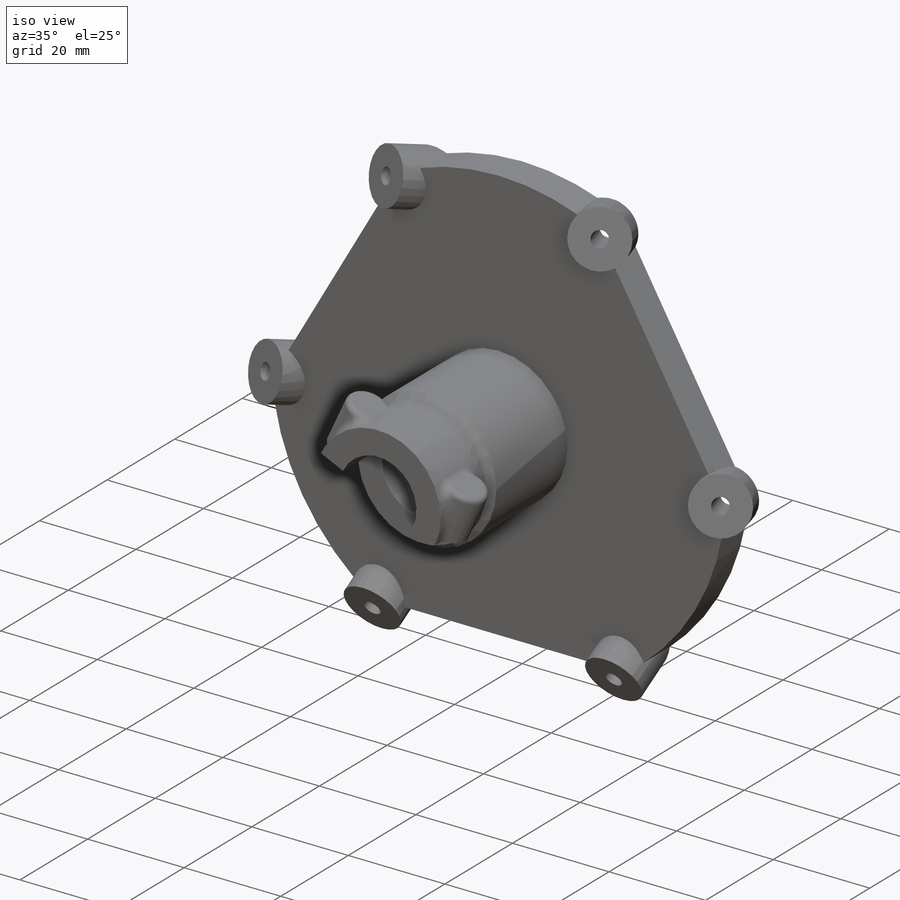
[diagram: iso view]
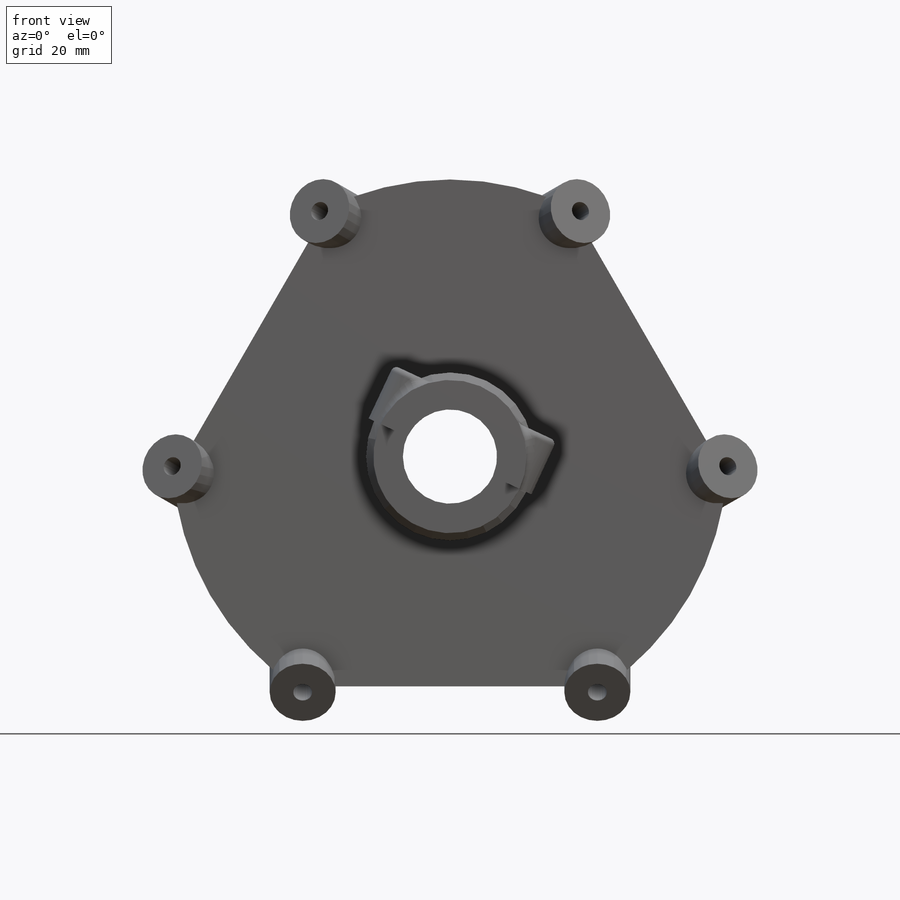
[diagram: front view]
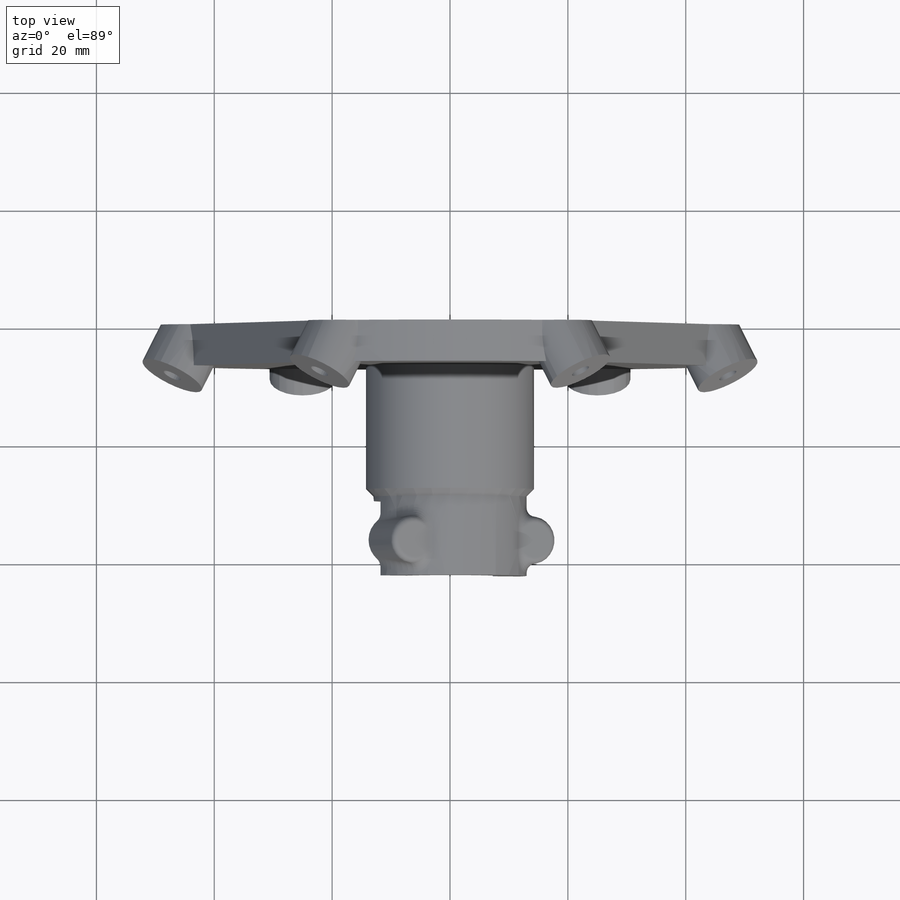
[diagram: top view]
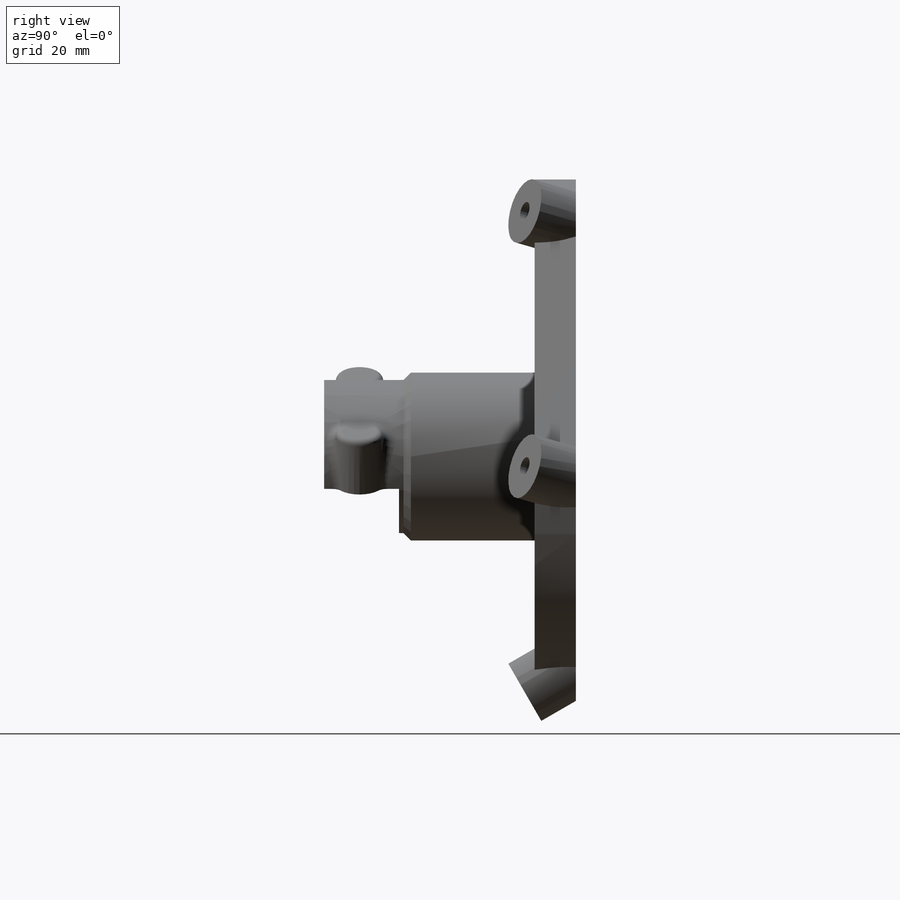
[diagram: right view]
SOLIDWORKS PART (.sldprt)
format: sldprt  version: not decoded by parser v0  size: 470,016 bytes
history: native  units: mm
features: sketch x9, cut_extrude x4, plane x3, extrude x3, fillet x2, material x1, pattern_circular x1, revolve x1 (+13 scaffold rows collapsed)
feature tree (37):
  scaffold x13  (default folders/planes/origin — collapsed)
  material  "Material <not specified>"
  sketch  "Sketch1"  dims[c1.D1=22.5mm c1.D2=~94.152723mm c2.D2=60.0deg c2.D3=50.0mm c2.D4=35.0mm c2.D5=3.0]
  plane  "Plane1"
  plane  "Plane2"
  plane  "Plane3"
  sketch  "Sketch2"  dims[D5=22.5mm D1=4.0mm D2=4.0mm D3=4.0mm D4=4.0mm]
  extrude  "Boss-Extrude1"  Depth=7mm
  sketch  "Sketch3"  dims[D1=3.2mm D2=11.2mm]
  extrude  "Boss-Extrude2"  Depth=10mm
  cut_extrude  "Cut-Extrude1"  [1 undecoded]
  sketch  "Sketch3<2>"
  pattern_circular  "CirPattern1"  Count=3 Angle=360deg
  sketch  "Sketch5"
  cut_extrude  "Cut-Extrude3"  [1 undecoded]
  sketch  "Sketch6"  dims[c1.D1=26.0mm c1.D2=3.7mm c1.D3=6.0mm c1.D4=3.0mm c1.D5=42.7mm c1.D6=8.0mm c1.D7=6.0mm c1.D8=11.15mm c1.D9=5.0mm c1.D10=5.0mm c1.D11=3.0mm c1.D12=0.15mm c1.D13=3.3mm c2.D13=45.0deg c2.D14=3.0mm]
  revolve  "Revolve1"  Angle=360deg
  sketch  "Sketch7"  dims[c1.D1=~78.011626mm c2.D1=65.0deg]
  cut_extrude  "Cut-Extrude5"  Depth=12.7mm
  sketch  "Sketch8"  dims[c1.D1=~4.971693mm c1.D2=4.0mm c1.D3=8.0mm c2.D1=11.5mm c2.D4=6.0mm c3.D1=11.25mm]
  extrude  "Boss-Extrude3"  [1 undecoded]
  sketch  "Sketch8<4>"  dims[D1=10.0mm]
  cut_extrude  "Cut-Extrude7"  Depth=8mm
  fillet  "Fillet2"  Radius=1mm
  fillet  "Fillet1"  Radius=2mm
decode coverage: 15 of 20 modeling features carry decoded parameters
note: ~ marks probable driven/reference dimensions
note: 3 parameter values undecoded
summary: no parameter record found for 3 features
note: suppression state not decoded; provenance and decode notes live in map.json
